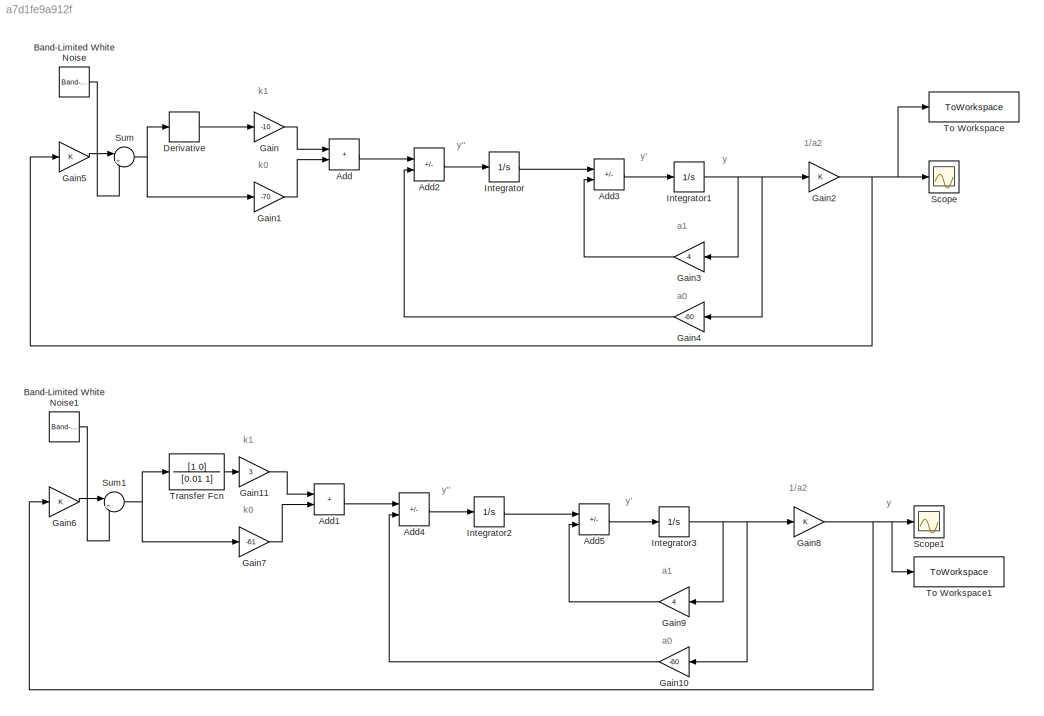
MODEL slx_a7d1fe9a912f
KIND model
CONFIG AbsTol = auto
CONFIG EnableMultiTasking = off
CONFIG FixedStep = 0.01
CONFIG MaxStep = auto
CONFIG MinStep = auto
CONFIG RelTol = 1e-3
CONFIG SampleTimeConstraint = Unconstrained
CONFIG SolverName = FixedStepAuto
CONFIG StartTime = 0.0
CONFIG StopTime = 10
BLOCK [Sum] Add
  IconShape = rectangular
BLOCK [Sum] Add1
  IconShape = rectangular
BLOCK [Sum] Add2
  IconShape = rectangular
  Inputs = +-
BLOCK [Sum] Add3
  IconShape = rectangular
  Inputs = +-
BLOCK [Sum] Add4
  IconShape = rectangular
  Inputs = +-
BLOCK [Sum] Add5
  IconShape = rectangular
  Inputs = +-
BLOCK [Reference] Band-Limited White Noise  REF=simulink/Sources/Band-Limited
White Noise
  SourceBlock = simulink/Sources/Band-Limited\nWhite Noise
  SourceType = Band-Limited White Noise.
BLOCK [Reference] Band-Limited White Noise1  REF=simulink/Sources/Band-Limited
White Noise
  SourceBlock = simulink/Sources/Band-Limited\nWhite Noise
  SourceType = Band-Limited White Noise.
BLOCK [Derivative] Derivative
BLOCK [Gain] Gain
  Gain = -10
BLOCK [Gain] Gain1
  Gain = -70
BLOCK [Gain] Gain10
  Gain = -60
  NameLocation = top
BLOCK [Gain] Gain11
  Gain = 3
BLOCK [Gain] Gain2
BLOCK [Gain] Gain3
  Gain = 4
  NameLocation = top
BLOCK [Gain] Gain4
  Gain = -60
  NameLocation = top
BLOCK [Gain] Gain5
BLOCK [Gain] Gain6
BLOCK [Gain] Gain7
  Gain = -61
BLOCK [Gain] Gain8
BLOCK [Gain] Gain9
  Gain = 4
  NameLocation = top
BLOCK [Integrator] Integrator
  InitialCondition = 5
BLOCK [Integrator] Integrator1
  InitialCondition = 5
BLOCK [Integrator] Integrator2
  InitialCondition = 5
BLOCK [Integrator] Integrator3
  InitialCondition = 5
BLOCK [Scope] Scope
  Floating = off
  NumInputPorts = 1
  ScopeSpecificationString = Simulink.scopes.TimeScopeBlockCfg('CurrentConfiguration', extmgr.ConfigurationSet(extmgr.Configuration('Core','General UI',true),extmgr.Configuration('Core','Source UI',true),extmgr.Configuration('Sources','WiredSimulink',true),extmgr.Configuration('Visuals','Time Domain',true,'SerializedDisplays',{struct('MinYLimReal','-1.10528','MaxYLimReal','5.67836','YLabelReal','','MinYLimMag','0.00000','MaxY...<+1325ch>
BLOCK [Scope] Scope1
  Floating = off
  NumInputPorts = 1
  ScopeSpecificationString = Simulink.scopes.TimeScopeBlockCfg('CurrentConfiguration', extmgr.ConfigurationSet(extmgr.Configuration('Core','General UI',true),extmgr.Configuration('Core','Source UI',true),extmgr.Configuration('Sources','WiredSimulink',true,'DataLoggingVariableName','ScopeData1'),extmgr.Configuration('Visuals','Time Domain',true,'SerializedDisplays',{struct('MinYLimReal','-5.67263','MaxYLimReal','6.91263','YLab...<+1393ch>
BLOCK [Sum] Sum
  Inputs = |++
BLOCK [Sum] Sum1
  Inputs = |++
BLOCK [ToWorkspace] To Workspace
  FixptAsFi = on
  MaxDataPoints = inf
  SampleTime = -1
  SaveFormat = Timeseries
  VariableName = simout
BLOCK [ToWorkspace] To Workspace1
  FixptAsFi = on
  MaxDataPoints = inf
  SampleTime = -1
  SaveFormat = Timeseries
  VariableName = simout1
BLOCK [TransferFcn] Transfer Fcn
  Denominator = [0.01 1]
  Numerator = [1 0]
ANNOTATION (root): 1/a2
ANNOTATION (root): a0
ANNOTATION (root): a1
ANNOTATION (root): k0
ANNOTATION (root): k1
ANNOTATION (root): y
ANNOTATION (root): y'
ANNOTATION (root): y''
LINE Add1:1 -> Add4:1
LINE Add2:1 -> Integrator:1
LINE Add3:1 -> Integrator1:1
LINE Add4:1 -> Integrator2:1
LINE Add5:1 -> Integrator3:1
LINE Add:1 -> Add2:1
LINE Band-Limited White Noise1:1 -> Sum1:2
LINE Band-Limited White Noise:1 -> Sum:2
LINE Derivative:1 -> Gain:1
LINE Gain10:1 -> Add4:2
LINE Gain11:1 -> Add1:1
LINE Gain1:1 -> Add:2
NET Gain2:1 -> Gain5:1, Scope:1, To Workspace:1
LINE Gain3:1 -> Add3:2
LINE Gain4:1 -> Add2:2
LINE Gain5:1 -> Sum:1
LINE Gain6:1 -> Sum1:1
LINE Gain7:1 -> Add1:2
NET Gain8:1 -> Gain6:1, Scope1:1, To Workspace1:1
LINE Gain9:1 -> Add5:2
LINE Gain:1 -> Add:1
NET Integrator1:1 -> Gain2:1, Gain3:1, Gain4:1
LINE Integrator2:1 -> Add5:1
NET Integrator3:1 -> Gain10:1, Gain8:1, Gain9:1
LINE Integrator:1 -> Add3:1
NET Sum1:1 -> Gain7:1, Transfer Fcn:1
NET Sum:1 -> Derivative:1, Gain1:1
LINE Transfer Fcn:1 -> Gain11:1
note: NET lines group one-source signal fan-out (src -> all destinations, sorted); 1:1 wires keep LINE
